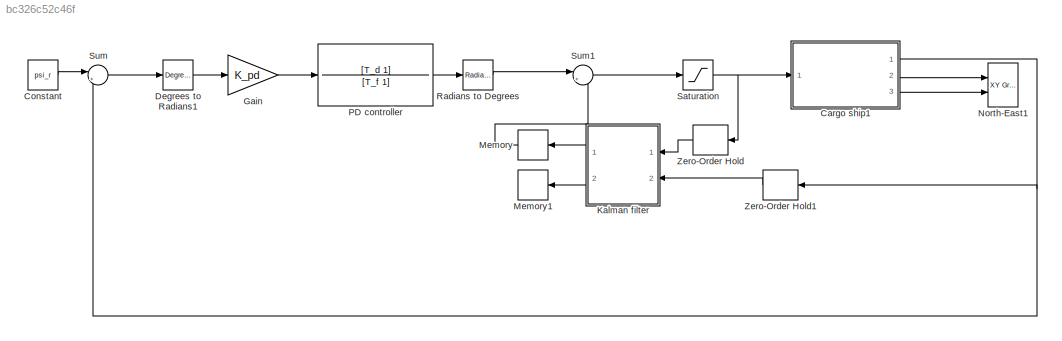
MODEL slx_bc326c52c46f
KIND model
CONFIG AbsTol = auto
CONFIG EnableMultiTasking = on
CONFIG FixedStep = auto
CONFIG MaxStep = auto
CONFIG MinStep = auto
CONFIG RelTol = 1e-3
CONFIG SampleTimeConstraint = Unconstrained
CONFIG Solver = ode45
CONFIG SolverName = ode45
CONFIG StartTime = 0.0
CONFIG StopTime = 500
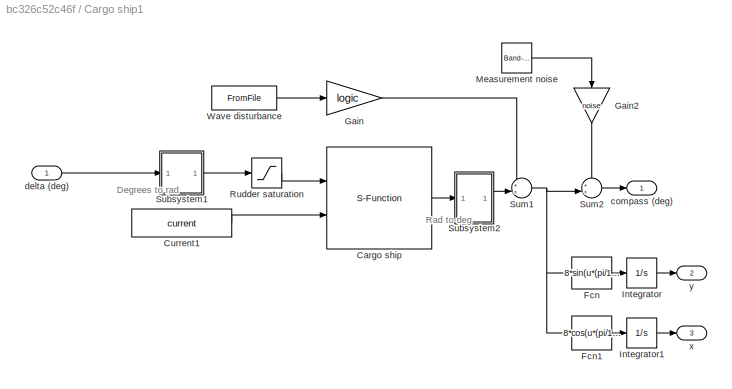
BLOCK [SubSystem] Cargo ship1
  Ports = [1, 3]
  RequestExecContextInheritance = off
BLOCK [S-Function] Cargo ship1/Cargo ship
  EnableBusSupport = off
  FunctionName = Cargoship
  Ports = [2, 1]
  SFcnIsStateOwnerBlock = off
  SFunctionDeploymentMode = off
BLOCK [Constant] Cargo ship1/Current1
  Value = current
BLOCK [Fcn] Cargo ship1/Fcn
  Expr = 8*sin(u*(pi/180))
BLOCK [Fcn] Cargo ship1/Fcn1
  Expr = 8*cos(u*(pi/180))
BLOCK [Gain] Cargo ship1/Gain
  Gain = logic
BLOCK [Gain] Cargo ship1/Gain2
  Gain = noise
BLOCK [Integrator] Cargo ship1/Integrator
  Ports = [1, 1]
BLOCK [Integrator] Cargo ship1/Integrator1
  Ports = [1, 1]
BLOCK [Reference] Cargo ship1/Measurement noise  REF=simulink/Sources/Band-Limited
White Noise
  Ports = [0, 1]
  SourceBlock = simulink/Sources/Band-Limited\nWhite Noise
  SourceProductBaseCode = SL
  SourceProductName = Simulink
  SourceType = Band-Limited White Noise.
BLOCK [Saturate] Cargo ship1/Rudder saturation
  InputPortMap = u0
  LowerLimit = -45*(pi/180)
  Ports = [1, 1]
  UpperLimit = 45*(pi/180)
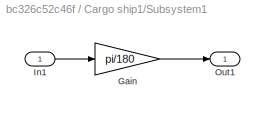
BLOCK [SubSystem] Cargo ship1/Subsystem1
  Ports = [1, 1]
  RequestExecContextInheritance = off
BLOCK [Gain] Cargo ship1/Subsystem1/Gain
  Gain = pi/180
BLOCK [Inport] Cargo ship1/Subsystem1/In1
  IconDisplay = Port number
BLOCK [Outport] Cargo ship1/Subsystem1/Out1
  IconDisplay = Port number
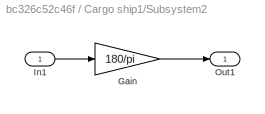
BLOCK [SubSystem] Cargo ship1/Subsystem2
  Ports = [1, 1]
  RequestExecContextInheritance = off
BLOCK [Gain] Cargo ship1/Subsystem2/Gain
  Gain = 180/pi
BLOCK [Inport] Cargo ship1/Subsystem2/In1
  IconDisplay = Port number
BLOCK [Outport] Cargo ship1/Subsystem2/Out1
  IconDisplay = Port number
BLOCK [Sum] Cargo ship1/Sum1
  IconShape = round
  InputSameDT = off
  Inputs = ++|
  OutDataTypeStr = Inherit: Inherit via internal rule
  Ports = [2, 1]
BLOCK [Sum] Cargo ship1/Sum2
  IconShape = round
  InputSameDT = off
  Inputs = ++|
  OutDataTypeStr = Inherit: Inherit via internal rule
  Ports = [2, 1]
BLOCK [FromFile] Cargo ship1/Wave disturbance
  FileName = wave.mat
  SampleTime = 0
BLOCK [Outport] Cargo ship1/compass (deg)
  IconDisplay = Port number
BLOCK [Inport] Cargo ship1/delta (deg)
  IconDisplay = Port number
BLOCK [Outport] Cargo ship1/x
  IconDisplay = Port number
  Port = 3
BLOCK [Outport] Cargo ship1/y
  IconDisplay = Port number
  Port = 2
BLOCK [Constant] Constant
  Value = psi_r
BLOCK [Reference] Degrees to Radians1  REF=simulink_extras/Transformations/Degrees to
Radians
  Ports = [1, 1]
  SourceBlock = simulink_extras/Transformations/Degrees to\nRadians
  SourceProductBaseCode = SL
  SourceProductName = Simulink
  SourceType = DegreesToRadians
BLOCK [Gain] Gain
  Gain = K_pd
  OutDataTypeStr = Inherit: Inherit via internal rule
  ParamDataTypeStr = Inherit: Inherit via internal rule
  SaturateOnIntegerOverflow = off
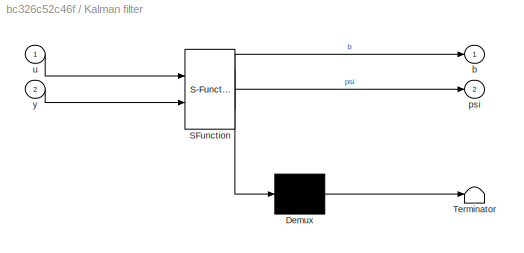
BLOCK [SubSystem] Kalman filter
  ErrorFcn = Stateflow.Translate.translate
  PermitHierarchicalResolution = ExplicitOnly
  Ports = [2, 2]
  RequestExecContextInheritance = off
  SFBlockType = MATLAB Function
  TreatAsAtomicUnit = on
BLOCK [Demux] Kalman filter/ Demux 
  Outputs = 1
  Ports = [1, 1]
BLOCK [S-Function] Kalman filter/ SFunction 
  EnableBusSupport = on
  FunctionName = sf_sfun
  PortCounts = [2 3]
  Ports = [2, 3]
  SFcnIsStateOwnerBlock = off
  SFunctionDeploymentMode = off
  Tag = Stateflow S-Function p5p5c 2
BLOCK [Terminator] Kalman filter/ Terminator 
BLOCK [Outport] Kalman filter/b
  IconDisplay = Port number
BLOCK [Outport] Kalman filter/psi
  IconDisplay = Port number
  Port = 2
BLOCK [Inport] Kalman filter/u
  IconDisplay = Port number
BLOCK [Inport] Kalman filter/y
  IconDisplay = Port number
  Port = 2
BLOCK [Memory] Memory
BLOCK [Memory] Memory1
BLOCK [Reference] North-East1  REF=simulink/Sinks/XY Graph
  Ports = [2]
  SourceBlock = simulink/Sinks/XY Graph
  SourceProductBaseCode = SL
  SourceProductName = Simulink
  SourceType = XY scope.
BLOCK [TransferFcn] PD controller
  Denominator = [T_f 1]
  Numerator = [T_d 1]
BLOCK [Reference] Radians to Degrees  REF=simulink_extras/Transformations/Radians
to Degrees
  Ports = [1, 1]
  SourceBlock = simulink_extras/Transformations/Radians\nto Degrees
  SourceProductBaseCode = SL
  SourceProductName = Simulink
  SourceType = RadiansToDegrees
BLOCK [Saturate] Saturation
  InputPortMap = u0
  LowerLimit = -35
  Ports = [1, 1]
  UpperLimit = 35
BLOCK [Sum] Sum
  IconShape = round
  InputSameDT = off
  Inputs = |+-
  OutDataTypeStr = Inherit: Inherit via internal rule
  Ports = [2, 1]
  SaturateOnIntegerOverflow = off
BLOCK [Sum] Sum1
  IconShape = round
  InputSameDT = off
  Inputs = |++
  OutDataTypeStr = Inherit: Inherit via internal rule
  Ports = [2, 1]
  SaturateOnIntegerOverflow = off
BLOCK [ZeroOrderHold] Zero-Order Hold
  SampleTime = 0.10
BLOCK [ZeroOrderHold] Zero-Order Hold1
  SampleTime = 0.10
ANNOTATION Cargo ship1: Degrees to rad
ANNOTATION Cargo ship1: Rad to deg
LINE Cargo ship1/Cargo ship:1 -> Cargo ship1/Subsystem2:1
LINE Cargo ship1/Current1:1 -> Cargo ship1/Cargo ship:2
LINE Cargo ship1/Fcn1:1 -> Cargo ship1/Integrator1:1
LINE Cargo ship1/Fcn:1 -> Cargo ship1/Integrator:1
LINE Cargo ship1/Gain2:1 -> Cargo ship1/Sum2:1
LINE Cargo ship1/Gain:1 -> Cargo ship1/Sum1:1
LINE Cargo ship1/Integrator1:1 -> Cargo ship1/x:1
LINE Cargo ship1/Integrator:1 -> Cargo ship1/y:1
LINE Cargo ship1/Measurement noise:1 -> Cargo ship1/Gain2:1
LINE Cargo ship1/Rudder saturation:1 -> Cargo ship1/Cargo ship:1
LINE Cargo ship1/Subsystem1/Gain:1 -> Cargo ship1/Subsystem1/Out1:1
LINE Cargo ship1/Subsystem1/In1:1 -> Cargo ship1/Subsystem1/Gain:1
LINE Cargo ship1/Subsystem1:1 -> Cargo ship1/Rudder saturation:1
LINE Cargo ship1/Subsystem2/Gain:1 -> Cargo ship1/Subsystem2/Out1:1
LINE Cargo ship1/Subsystem2/In1:1 -> Cargo ship1/Subsystem2/Gain:1
LINE Cargo ship1/Subsystem2:1 -> Cargo ship1/Sum1:2
NET Cargo ship1/Sum1:1 -> Cargo ship1/Fcn1:1, Cargo ship1/Fcn:1, Cargo ship1/Sum2:2
LINE Cargo ship1/Sum2:1 -> Cargo ship1/compass (deg):1
LINE Cargo ship1/Wave disturbance:1 -> Cargo ship1/Gain:1
LINE Cargo ship1/delta (deg):1 -> Cargo ship1/Subsystem1:1
NET Cargo ship1:1 -> Sum:2, Zero-Order Hold1:1
LINE Cargo ship1:2 -> North-East1:1
LINE Cargo ship1:3 -> North-East1:2
LINE Constant:1 -> Sum:1
LINE Degrees to Radians1:1 -> Gain:1
LINE Gain:1 -> PD controller:1
LINE Kalman filter:1 -> Memory:1
LINE Kalman filter:2 -> Memory1:1
LINE Memory:1 -> Sum1:2
LINE PD controller:1 -> Radians to Degrees:1
LINE Radians to Degrees:1 -> Sum1:1
NET Saturation:1 -> Cargo ship1:1, Zero-Order Hold:1
LINE Sum1:1 -> Saturation:1
LINE Sum:1 -> Degrees to Radians1:1
LINE Zero-Order Hold1:1 -> Kalman filter:2
LINE Zero-Order Hold:1 -> Kalman filter:1
note: NET lines group one-source signal fan-out (src -> all destinations, sorted); 1:1 wires keep LINE
CHART Kalman filter states=1 transitions=1
  STATE_LABEL 'eML_blk_kernel()'
  STATE_LABEL 'SCRIPT:\nfunction [b, psi]= fcn(u,y)\npersistent init_flag A_d B_d C_d E_d Q P_ x_ R\n\nif isempty(init_flag)\n    init_flag = 1;\n    \n    A_d = [0.997 0.0992 0 0 0;\n           -0.0607 0.9830 0 0 0;\n           0 0 1 0.0999 0;\n           0 0 0 0.9986 -0.0002;\n           0 0 0 0 1;\n           ];\n    B_d = 1.0e-03*[ 0\n            0\n            0.0108\n            0.2151\n            0\n            ];\n    C_d...<+689ch>'
